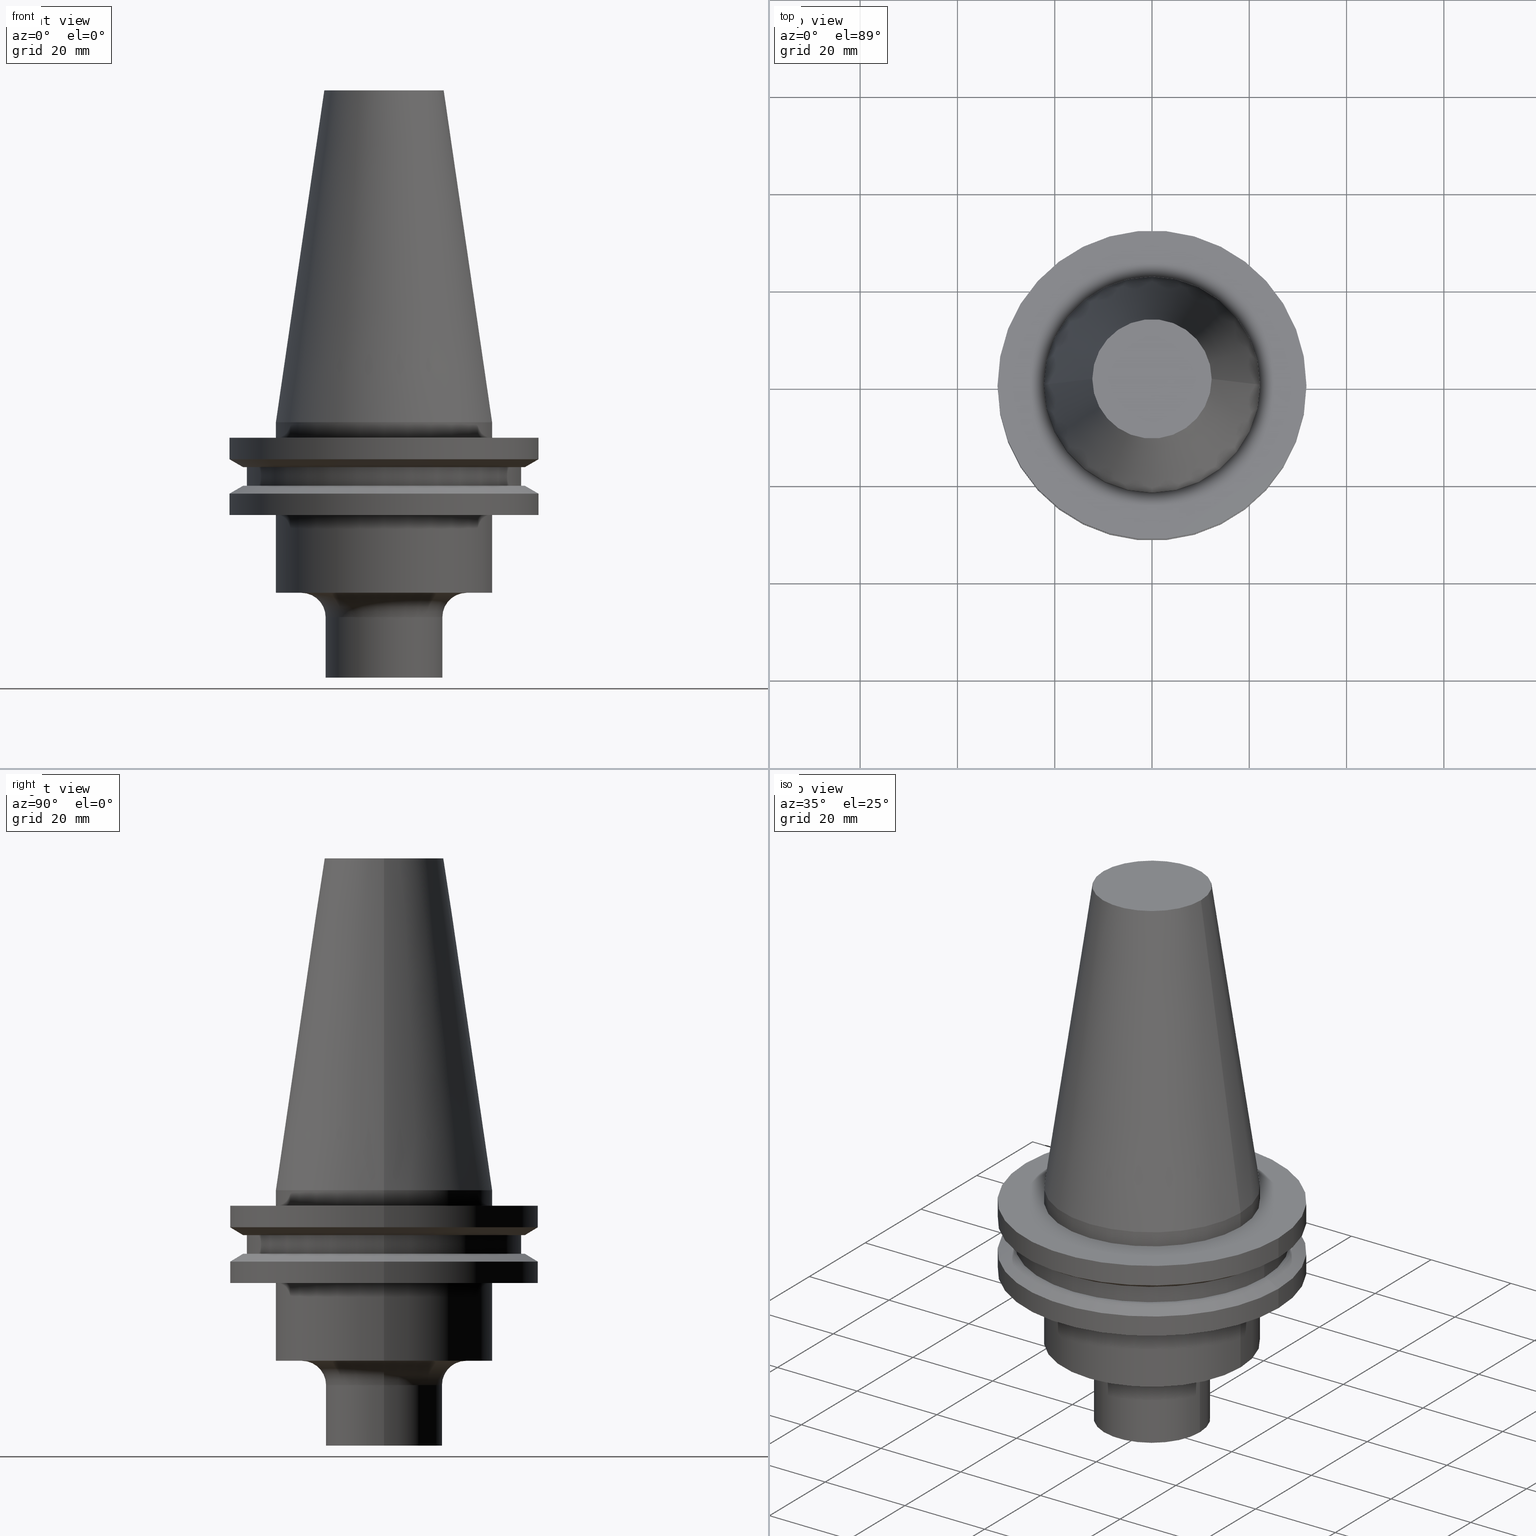
[diagram: canonical four-view strip — front | top / right | iso, engineering-drawing reading convention]
A machine part, canonical four-view strip (front | top / right | iso — engineering-drawing reading convention). The complete STEP part file that produces these views, byte-faithful:
ISO-10303-21;
HEADER;
FILE_DESCRIPTION (( 'STEP AP203' ),
    '1' );
FILE_NAME ('11_326_420.STEP',
    '2022-03-07T22:02:42',
    ( '' ),
    ( '' ),
    'SwSTEP 2.0',
    'SolidWorks 2021',
    '' );
FILE_SCHEMA (( 'CONFIG_CONTROL_DESIGN' ));
ENDSEC;

DATA;
#1 = ORIENTED_EDGE ( 'NONE', *, *, #81, .T. ) ;
#2 = FACE_OUTER_BOUND ( 'NONE', #200, .T. ) ;
#3 = VECTOR ( 'NONE', #83, 1000.000000000000000 ) ;
#4 = AXIS2_PLACEMENT_3D ( 'NONE', #354, #359, #231 ) ;
#5 = DIRECTION ( 'NONE',  ( 1.000000000000000000, 0.000000000000000000, 0.000000000000000000 ) ) ;
#6 = VECTOR ( 'NONE', #389, 1000.000000000000000 ) ;
#7 = ORIENTED_EDGE ( 'NONE', *, *, #33, .T. ) ;
#8 = DIRECTION ( 'NONE',  ( 1.000000000000000000, 0.000000000000000000, 0.000000000000000000 ) ) ;
#9 = DIRECTION ( 'NONE',  ( 0.000000000000000000, -0.000000000000000000, 1.000000000000000000 ) ) ;
#10 = EDGE_CURVE ( 'NONE', #278, #192, #355, .T. ) ;
#11 = ORIENTED_EDGE ( 'NONE', *, *, #613, .F. ) ;
#12 = DIRECTION ( 'NONE',  ( -0.000000000000000000, -0.000000000000000000, 1.000000000000000000 ) ) ;
#13 = EDGE_LOOP ( 'NONE', ( #592, #57, #125, #349 ) ) ;
#14 = DIRECTION ( 'NONE',  ( 1.000000000000000000, 0.000000000000000000, 0.000000000000000000 ) ) ;
#15 = AXIS2_PLACEMENT_3D ( 'NONE', #758, #270, #747 ) ;
#16 = ORIENTED_EDGE ( 'NONE', *, *, #22, .T. ) ;
#17 = VECTOR ( 'NONE', #572, 1000.000000000000000 ) ;
#18 = AXIS2_PLACEMENT_3D ( 'NONE', #234, #645, #475 ) ;
#19 = APPROVAL_ROLE ( '' ) ;
#20 = DIRECTION ( 'NONE',  ( 0.000000000000000000, -0.000000000000000000, 1.000000000000000000 ) ) ;
#21 = VERTEX_POINT ( 'NONE', #25 ) ;
#22 = EDGE_CURVE ( 'NONE', #607, #682, #676, .T. ) ;
#23 = APPROVAL_DATE_TIME ( #576, #549 ) ;
#24 = CARTESIAN_POINT ( 'NONE',  ( 0.000000000000000000, 0.000000000000000000, -3.174999999999997158 ) ) ;
#25 = CARTESIAN_POINT ( 'NONE',  ( -22.22500000000000142, 2.721777511104992849E-15, -19.04999999999999716 ) ) ;
#26 = CARTESIAN_POINT ( 'NONE',  ( 0.000000000000000000, 22.22500000000000142, -35.04999999999999716 ) ) ;
#27 = FACE_OUTER_BOUND ( 'NONE', #315, .T. ) ;
#28 = CIRCLE ( 'NONE', #15, 22.22500000000000142 ) ;
#29 = CIRCLE ( 'NONE', #66, 22.22500000000000142 ) ;
#30 = AXIS2_PLACEMENT_3D ( 'NONE', #705, #293, #772 ) ;
#31 = CARTESIAN_POINT ( 'NONE',  ( 0.000000000000000000, 0.000000000000000000, 68.25000000000000000 ) ) ;
#32 = DIRECTION ( 'NONE',  ( -0.000000000000000000, -0.000000000000000000, 1.000000000000000000 ) ) ;
#33 = EDGE_CURVE ( 'NONE', #762, #588, #662, .T. ) ;
#34 = CARTESIAN_POINT ( 'NONE',  ( 28.17999999999999972, 0.000000000000000000, 68.25000000000000000 ) ) ;
#35 = DIRECTION ( 'NONE',  ( -0.000000000000000000, -0.000000000000000000, 1.000000000000000000 ) ) ;
#36 = ORIENTED_EDGE ( 'NONE', *, *, #749, .F. ) ;
#37 = LINE ( 'NONE', #397, #308 ) ;
#38 = DIRECTION ( 'NONE',  ( -0.000000000000000000, -0.000000000000000000, 1.000000000000000000 ) ) ;
#39 = AXIS2_PLACEMENT_3D ( 'NONE', #694, #623, #521 ) ;
#40 = VECTOR ( 'NONE', #76, 999.9999999999998863 ) ;
#41 = LOCAL_TIME ( 16, 2, 42.00000000000000000, #123 ) ;
#42 = LINE ( 'NONE', #110, #357 ) ;
#43 = CARTESIAN_POINT ( 'NONE',  ( -12.27178102086201150, 0.000000000000000000, 68.25000000000000000 ) ) ;
#44 = VERTEX_POINT ( 'NONE', #745 ) ;
#45 = PRODUCT_RELATED_PRODUCT_CATEGORY ( 'detail', '', ( #97 ) ) ;
#46 = DIRECTION ( 'NONE',  ( -0.000000000000000000, -0.000000000000000000, 1.000000000000000000 ) ) ;
#47 = DIRECTION ( 'NONE',  ( 1.000000000000000000, 0.000000000000000000, 0.000000000000000000 ) ) ;
#48 = ORIENTED_EDGE ( 'NONE', *, *, #638, .F. ) ;
#49 = LINE ( 'NONE', #696, #742 ) ;
#50 = DIRECTION ( 'NONE',  ( -0.000000000000000000, -0.000000000000000000, 1.000000000000000000 ) ) ;
#51 = ORIENTED_EDGE ( 'NONE', *, *, #102, .F. ) ;
#52 = PRODUCT_DEFINITION_SHAPE ( 'NONE', 'NONE',  #109 ) ;
#53 = AXIS2_PLACEMENT_3D ( 'NONE', #327, #450, #685 ) ;
#54 = FACE_OUTER_BOUND ( 'NONE', #736, .T. ) ;
#55 = APPROVAL_PERSON_ORGANIZATION ( #713, #730, #718 ) ;
#56 = LINE ( 'NONE', #342, #240 ) ;
#57 = ORIENTED_EDGE ( 'NONE', *, *, #249, .T. ) ;
#58 = COORDINATED_UNIVERSAL_TIME_OFFSET ( 6, 0, .BEHIND. ) ;
#59 = DIRECTION ( 'NONE',  ( 0.000000000000000000, 0.000000000000000000, -1.000000000000000000 ) ) ;
#60 = EDGE_LOOP ( 'NONE', ( #48, #288, #675, #426 ) ) ;
#61 = DIRECTION ( 'NONE',  ( -0.000000000000000000, -0.000000000000000000, 1.000000000000000000 ) ) ;
#62 = CARTESIAN_POINT ( 'NONE',  ( -22.22500000000000142, 0.000000000000000000, 0.000000000000000000 ) ) ;
#63 = ORIENTED_EDGE ( 'NONE', *, *, #557, .T. ) ;
#64 = ADVANCED_FACE ( 'NONE', ( #266 ), #295, .T. ) ;
#65 = DIRECTION ( 'NONE',  ( -0.000000000000000000, -0.000000000000000000, 1.000000000000000000 ) ) ;
#66 = AXIS2_PLACEMENT_3D ( 'NONE', #440, #98, #619 ) ;
#67 = DIRECTION ( 'NONE',  ( -0.000000000000000000, -0.000000000000000000, 1.000000000000000000 ) ) ;
#68 = ORIENTED_EDGE ( 'NONE', *, *, #286, .T. ) ;
#69 = CARTESIAN_POINT ( 'NONE',  ( 0.000000000000000000, 0.000000000000000000, 68.25000000000000000 ) ) ;
#70 = FACE_OUTER_BOUND ( 'NONE', #60, .T. ) ;
#71 = EDGE_LOOP ( 'NONE', ( #658, #565, #733, #523 ) ) ;
#72 = DIRECTION ( 'NONE',  ( -0.000000000000000000, -0.000000000000000000, 1.000000000000000000 ) ) ;
#73 = FACE_OUTER_BOUND ( 'NONE', #13, .T. ) ;
#74 = VERTEX_POINT ( 'NONE', #99 ) ;
#75 = PERSON_AND_ORGANIZATION_ROLE ( 'design_supplier' ) ;
#76 = DIRECTION ( 'NONE',  ( -0.1443082272672999711, 0.000000000000000000, -0.9895327864921755756 ) ) ;
#77 = VECTOR ( 'NONE', #154, 1000.000000000000000 ) ;
#78 = VERTEX_POINT ( 'NONE', #568 ) ;
#79 = AXIS2_PLACEMENT_3D ( 'NONE', #202, #579, #205 ) ;
#80 = CIRCLE ( 'NONE', #30, 17.00000000000000000 ) ;
#81 = EDGE_CURVE ( 'NONE', #578, #296, #725, .T. ) ;
#82 = DIRECTION ( 'NONE',  ( 1.000000000000000000, 0.000000000000000000, 0.000000000000000000 ) ) ;
#83 = DIRECTION ( 'NONE',  ( -0.000000000000000000, -0.000000000000000000, 1.000000000000000000 ) ) ;
#84 = CARTESIAN_POINT ( 'NONE',  ( 0.000000000000000000, 0.000000000000000000, -14.65472339340266572 ) ) ;
#85 = CYLINDRICAL_SURFACE ( 'NONE', #239, 12.00000000000000000 ) ;
#86 = EDGE_LOOP ( 'NONE', ( #179, #551 ) ) ;
#87 = SHAPE_DEFINITION_REPRESENTATION ( #52, #442 ) ;
#88 = ADVANCED_FACE ( 'NONE', ( #27 ), #85, .T. ) ;
#89 = CARTESIAN_POINT ( 'NONE',  ( -28.97919780457007732, 3.548928183322474856E-15, -9.205000000000005400 ) ) ;
#90 = CARTESIAN_POINT ( 'NONE',  ( 0.000000000000000000, 0.000000000000000000, -19.04999999999999716 ) ) ;
#91 = CIRCLE ( 'NONE', #640, 28.97919780457007732 ) ;
#92 = CIRCLE ( 'NONE', #158, 28.17999999999999972 ) ;
#93 = PERSON_AND_ORGANIZATION ( #135, #584 ) ;
#94 = DIRECTION ( 'NONE',  ( 1.000000000000000000, 0.000000000000000000, 0.000000000000000000 ) ) ;
#95 = CC_DESIGN_PERSON_AND_ORGANIZATION_ASSIGNMENT ( #492, #256, ( #97 ) ) ;
#96 = ORIENTED_EDGE ( 'NONE', *, *, #314, .F. ) ;
#97 = PRODUCT ( '11_326_420', '11_326_420', '', ( #376 ) ) ;
#98 = DIRECTION ( 'NONE',  ( -0.000000000000000000, -0.000000000000000000, 1.000000000000000000 ) ) ;
#99 = CARTESIAN_POINT ( 'NONE',  ( -22.22500000000000142, 2.721777511104992849E-15, -35.04999999999999716 ) ) ;
#100 = DIRECTION ( 'NONE',  ( 0.000000000000000000, -0.000000000000000000, 1.000000000000000000 ) ) ;
#101 = DIRECTION ( 'NONE',  ( 1.000000000000000000, 0.000000000000000000, 0.000000000000000000 ) ) ;
#102 = EDGE_CURVE ( 'NONE', #412, #682, #686, .T. ) ;
#103 = CIRCLE ( 'NONE', #457, 12.00000000000000000 ) ;
#104 = AXIS2_PLACEMENT_3D ( 'NONE', #374, #9, #184 ) ;
#105 = AXIS2_PLACEMENT_3D ( 'NONE', #648, #280, #399 ) ;
#106 = DIRECTION ( 'NONE',  ( 1.000000000000000000, 0.000000000000000000, 0.000000000000000000 ) ) ;
#107 = DIRECTION ( 'NONE',  ( 1.000000000000000000, 0.000000000000000000, 0.000000000000000000 ) ) ;
#108 = ORIENTED_EDGE ( 'NONE', *, *, #373, .T. ) ;
#109 = PRODUCT_DEFINITION ( 'UNKNOWN', '', #382, #712 ) ;
#110 = CARTESIAN_POINT ( 'NONE',  ( 22.22500000000000142, 2.721777511104992849E-15, 0.000000000000000000 ) ) ;
#111 = CARTESIAN_POINT ( 'NONE',  ( 0.000000000000000000, 0.000000000000000000, -52.50000000000000000 ) ) ;
#112 = EDGE_LOOP ( 'NONE', ( #538, #96 ) ) ;
#113 = FACE_OUTER_BOUND ( 'NONE', #86, .T. ) ;
#114 = ADVANCED_FACE ( 'NONE', ( #504 ), #739, .T. ) ;
#115 = CARTESIAN_POINT ( 'NONE',  ( -28.17999999999999972, 3.451054679997241634E-15, -13.05499999999999794 ) ) ;
#116 = ORIENTED_EDGE ( 'NONE', *, *, #590, .F. ) ;
#117 = AXIS2_PLACEMENT_3D ( 'NONE', #159, #146, #567 ) ;
#118 = CARTESIAN_POINT ( 'NONE',  ( 0.000000000000000000, 0.000000000000000000, -9.205000000000005400 ) ) ;
#119 = AXIS2_PLACEMENT_3D ( 'NONE', #413, #407, #220 ) ;
#120 = DIRECTION ( 'NONE',  ( -0.000000000000000000, -0.000000000000000000, 1.000000000000000000 ) ) ;
#121 = EDGE_CURVE ( 'NONE', #21, #157, #255, .T. ) ;
#122 = EDGE_LOOP ( 'NONE', ( #36, #203, #319, #477 ) ) ;
#123 = COORDINATED_UNIVERSAL_TIME_OFFSET ( 6, 0, .BEHIND. ) ;
#124 = CARTESIAN_POINT ( 'NONE',  ( 0.000000000000000000, 0.000000000000000000, -9.205000000000005400 ) ) ;
#125 = ORIENTED_EDGE ( 'NONE', *, *, #455, .F. ) ;
#126 = EDGE_CURVE ( 'NONE', #192, #278, #28, .T. ) ;
#127 = COORDINATED_UNIVERSAL_TIME_OFFSET ( 6, 0, .BEHIND. ) ;
#128 = LINE ( 'NONE', #62, #40 ) ;
#129 = EDGE_LOOP ( 'NONE', ( #717, #68, #683, #238 ) ) ;
#130 = DIRECTION ( 'NONE',  ( 1.000000000000000000, 0.000000000000000000, 0.000000000000000000 ) ) ;
#131 = CIRCLE ( 'NONE', #180, 28.97919780457008088 ) ;
#132 = AXIS2_PLACEMENT_3D ( 'NONE', #583, #59, #302 ) ;
#133 = DIRECTION ( 'NONE',  ( -0.000000000000000000, -0.000000000000000000, 1.000000000000000000 ) ) ;
#134 = ORIENTED_EDGE ( 'NONE', *, *, #573, .F. ) ;
#135 = PERSON ( 'UNSPECIFIED', 'UNSPECIFIED', 'UNSPECIFIED', ('UNSPECIFIED'), ('UNSPECIFIED'), ('UNSPECIFIED') ) ;
#136 = DATE_AND_TIME ( #668, #702 ) ;
#137 = CARTESIAN_POINT ( 'NONE',  ( 0.000000000000000000, 0.000000000000000000, -13.05499999999999794 ) ) ;
#138 = ORIENTED_EDGE ( 'NONE', *, *, #474, .T. ) ;
#139 = DIRECTION ( 'NONE',  ( -0.000000000000000000, -0.000000000000000000, 1.000000000000000000 ) ) ;
#140 = EDGE_CURVE ( 'NONE', #296, #192, #691, .T. ) ;
#141 = ORIENTED_EDGE ( 'NONE', *, *, #388, .F. ) ;
#142 = FACE_OUTER_BOUND ( 'NONE', #272, .T. ) ;
#143 = CIRCLE ( 'NONE', #393, 12.27178102086201150 ) ;
#144 = EDGE_CURVE ( 'NONE', #741, #607, #752, .T. ) ;
#145 = ORIENTED_EDGE ( 'NONE', *, *, #369, .F. ) ;
#146 = DIRECTION ( 'NONE',  ( -0.000000000000000000, -0.000000000000000000, 1.000000000000000000 ) ) ;
#147 = ORIENTED_EDGE ( 'NONE', *, *, #749, .T. ) ;
#148 = EDGE_CURVE ( 'NONE', #303, #515, #131, .T. ) ;
#149 = LINE ( 'NONE', #276, #17 ) ;
#150 = EDGE_LOOP ( 'NONE', ( #720, #766, #704, #465 ) ) ;
#151 = CC_DESIGN_PERSON_AND_ORGANIZATION_ASSIGNMENT ( #214, #75, ( #382 ) ) ;
#152 = CARTESIAN_POINT ( 'NONE',  ( -17.00000000000000000, 2.081899558550500280E-15, -35.04999999999999716 ) ) ;
#153 = AXIS2_PLACEMENT_3D ( 'NONE', #160, #216, #339 ) ;
#154 = DIRECTION ( 'NONE',  ( -0.000000000000000000, -0.000000000000000000, 1.000000000000000000 ) ) ;
#155 = VECTOR ( 'NONE', #120, 1000.000000000000000 ) ;
#156 = AXIS2_PLACEMENT_3D ( 'NONE', #759, #461, #636 ) ;
#157 = VERTEX_POINT ( 'NONE', #591 ) ;
#158 = AXIS2_PLACEMENT_3D ( 'NONE', #466, #358, #230 ) ;
#159 = CARTESIAN_POINT ( 'NONE',  ( 0.000000000000000000, 0.000000000000000000, 68.25000000000000000 ) ) ;
#160 = CARTESIAN_POINT ( 'NONE',  ( 0.000000000000000000, 0.000000000000000000, 68.25000000000000000 ) ) ;
#161 = UNCERTAINTY_MEASURE_WITH_UNIT (LENGTH_MEASURE( 1.000000000000000082E-05 ), #605, 'distance_accuracy_value', 'NONE');
#162 = CARTESIAN_POINT ( 'NONE',  ( -31.75000000000000000, 3.888253587292846476E-15, -7.605276606597335842 ) ) ;
#163 = CARTESIAN_POINT ( 'NONE',  ( 0.000000000000000000, 12.27178102086201150, 68.25000000000000000 ) ) ;
#164 = ADVANCED_FACE ( 'NONE', ( #400 ), #291, .T. ) ;
#165 = FACE_OUTER_BOUND ( 'NONE', #218, .T. ) ;
#166 = PLANE ( 'NONE',  #753 ) ;
#167 = VERTEX_POINT ( 'NONE', #777 ) ;
#168 = CIRCLE ( 'NONE', #716, 12.00000000000000000 ) ;
#169 = FACE_OUTER_BOUND ( 'NONE', #150, .T. ) ;
#170 = DIRECTION ( 'NONE',  ( 1.000000000000000000, 0.000000000000000000, 0.000000000000000000 ) ) ;
#171 = ORIENTED_EDGE ( 'NONE', *, *, #499, .F. ) ;
#172 = EDGE_CURVE ( 'NONE', #578, #278, #641, .T. ) ;
#173 = LINE ( 'NONE', #299, #368 ) ;
#174 = CARTESIAN_POINT ( 'NONE',  ( 0.000000000000000000, 0.000000000000000000, -40.04999999999999716 ) ) ;
#175 = ORIENTED_EDGE ( 'NONE', *, *, #346, .T. ) ;
#176 = ADVANCED_FACE ( 'NONE', ( #649 ), #379, .F. ) ;
#177 = DIRECTION ( 'NONE',  ( 1.000000000000000000, 0.000000000000000000, 0.000000000000000000 ) ) ;
#178 = DIRECTION ( 'NONE',  ( -0.000000000000000000, -0.000000000000000000, 1.000000000000000000 ) ) ;
#179 = ORIENTED_EDGE ( 'NONE', *, *, #514, .T. ) ;
#180 = AXIS2_PLACEMENT_3D ( 'NONE', #448, #348, #480 ) ;
#181 = AXIS2_PLACEMENT_3D ( 'NONE', #31, #678, #501 ) ;
#182 = DATE_AND_TIME ( #721, #285 ) ;
#183 = AXIS2_PLACEMENT_3D ( 'NONE', #539, #65, #8 ) ;
#184 = DIRECTION ( 'NONE',  ( 1.000000000000000000, 0.000000000000000000, 0.000000000000000000 ) ) ;
#185 = ORIENTED_EDGE ( 'NONE', *, *, #10, .F. ) ;
#186 = LINE ( 'NONE', #542, #271 ) ;
#187 = PLANE ( 'NONE',  #330 ) ;
#188 = EDGE_CURVE ( 'NONE', #409, #211, #417, .T. ) ;
#189 = ORIENTED_EDGE ( 'NONE', *, *, #573, .T. ) ;
#190 = DATE_TIME_ROLE ( 'creation_date' ) ;
#191 = DIRECTION ( 'NONE',  ( 0.000000000000000000, 0.000000000000000000, -1.000000000000000000 ) ) ;
#192 = VERTEX_POINT ( 'NONE', #529 ) ;
#193 = APPLICATION_PROTOCOL_DEFINITION ( 'international standard', 'config_control_design', 1994, #569 ) ;
#194 = AXIS2_PLACEMENT_3D ( 'NONE', #726, #435, #669 ) ;
#195 = DIRECTION ( 'NONE',  ( -0.000000000000000000, -0.000000000000000000, 1.000000000000000000 ) ) ;
#196 = ORIENTED_EDGE ( 'NONE', *, *, #314, .T. ) ;
#197 = EDGE_CURVE ( 'NONE', #292, #598, #143, .T. ) ;
#198 = DIRECTION ( 'NONE',  ( 0.000000000000000000, 0.000000000000000000, 1.000000000000000000 ) ) ;
#199 = DIRECTION ( 'NONE',  ( -0.000000000000000000, -0.000000000000000000, 1.000000000000000000 ) ) ;
#200 = EDGE_LOOP ( 'NONE', ( #530, #673, #473, #664 ) ) ;
#201 = CALENDAR_DATE ( 2022, 7, 3 ) ;
#202 = CARTESIAN_POINT ( 'NONE',  ( 0.000000000000000000, 0.000000000000000000, -52.50000000000000000 ) ) ;
#203 = ORIENTED_EDGE ( 'NONE', *, *, #33, .F. ) ;
#204 = CIRCLE ( 'NONE', #558, 22.22500000000000142 ) ;
#205 = DIRECTION ( 'NONE',  ( 1.000000000000000000, 0.000000000000000000, 0.000000000000000000 ) ) ;
#206 = ORIENTED_EDGE ( 'NONE', *, *, #126, .T. ) ;
#207 = AXIS2_PLACEMENT_3D ( 'NONE', #486, #12, #437 ) ;
#208 = EDGE_CURVE ( 'NONE', #412, #741, #617, .T. ) ;
#209 = AXIS2_PLACEMENT_3D ( 'NONE', #69, #72, #130 ) ;
#210 = DIRECTION ( 'NONE',  ( 1.000000000000000000, 0.000000000000000000, 0.000000000000000000 ) ) ;
#211 = VERTEX_POINT ( 'NONE', #115 ) ;
#212 = DIRECTION ( 'NONE',  ( -0.000000000000000000, -0.000000000000000000, 1.000000000000000000 ) ) ;
#213 = DIRECTION ( 'NONE',  ( -0.000000000000000000, -0.000000000000000000, 1.000000000000000000 ) ) ;
#214 = PERSON_AND_ORGANIZATION ( #135, #584 ) ;
#215 = FACE_OUTER_BOUND ( 'NONE', #356, .T. ) ;
#216 = DIRECTION ( 'NONE',  ( -0.000000000000000000, -0.000000000000000000, 1.000000000000000000 ) ) ;
#217 = AXIS2_PLACEMENT_3D ( 'NONE', #394, #525, #289 ) ;
#218 = EDGE_LOOP ( 'NONE', ( #585, #361, #620, #141 ) ) ;
#219 = EDGE_CURVE ( 'NONE', #306, #260, #411, .T. ) ;
#220 = DIRECTION ( 'NONE',  ( -1.000000000000000000, 0.000000000000000000, 0.000000000000000000 ) ) ;
#221 = DIRECTION ( 'NONE',  ( -0.000000000000000000, -0.000000000000000000, 1.000000000000000000 ) ) ;
#222 = FACE_BOUND ( 'NONE', #728, .T. ) ;
#223 = CARTESIAN_POINT ( 'NONE',  ( 0.000000000000000000, 0.000000000000000000, -3.174999999999997158 ) ) ;
#224 = ORIENTED_EDGE ( 'NONE', *, *, #264, .T. ) ;
#225 = CYLINDRICAL_SURFACE ( 'NONE', #469, 12.00000000000000000 ) ;
#226 = DIRECTION ( 'NONE',  ( -0.000000000000000000, -0.000000000000000000, 1.000000000000000000 ) ) ;
#227 = ORIENTED_EDGE ( 'NONE', *, *, #392, .F. ) ;
#228 = VECTOR ( 'NONE', #178, 1000.000000000000000 ) ;
#229 = AXIS2_PLACEMENT_3D ( 'NONE', #258, #377, #561 ) ;
#230 = DIRECTION ( 'NONE',  ( 1.000000000000000000, 0.000000000000000000, 0.000000000000000000 ) ) ;
#231 = DIRECTION ( 'NONE',  ( 1.000000000000000000, 0.000000000000000000, 0.000000000000000000 ) ) ;
#232 = ORIENTED_EDGE ( 'NONE', *, *, #499, .T. ) ;
#233 = ADVANCED_FACE ( 'NONE', ( #532 ), #283, .F. ) ;
#234 = CARTESIAN_POINT ( 'NONE',  ( 0.000000000000000000, 0.000000000000000000, -14.65472339340266572 ) ) ;
#235 = DIRECTION ( 'NONE',  ( -0.000000000000000000, -0.000000000000000000, 1.000000000000000000 ) ) ;
#236 = EDGE_LOOP ( 'NONE', ( #390, #650 ) ) ;
#237 = CARTESIAN_POINT ( 'NONE',  ( 0.000000000000000000, 0.000000000000000000, 68.25000000000000000 ) ) ;
#238 = ORIENTED_EDGE ( 'NONE', *, *, #121, .F. ) ;
#239 = AXIS2_PLACEMENT_3D ( 'NONE', #627, #274, #517 ) ;
#240 = VECTOR ( 'NONE', #764, 1000.000000000000000 ) ;
#241 = CIRCLE ( 'NONE', #79, 12.00000000000000000 ) ;
#242 = CYLINDRICAL_SURFACE ( 'NONE', #419, 22.22500000000000142 ) ;
#243 = APPROVAL_PERSON_ORGANIZATION ( #334, #549, #19 ) ;
#244 = ADVANCED_FACE ( 'NONE', ( #408 ), #166, .F. ) ;
#245 = CARTESIAN_POINT ( 'NONE',  ( 28.17999999999999972, 0.000000000000000000, -13.05499999999999794 ) ) ;
#246 = EDGE_LOOP ( 'NONE', ( #544, #699, #108, #206 ) ) ;
#247 = CARTESIAN_POINT ( 'NONE',  ( 0.000000000000000000, 0.000000000000000000, 0.000000000000000000 ) ) ;
#248 = PLANE ( 'NONE',  #571 ) ;
#249 = EDGE_CURVE ( 'NONE', #211, #167, #56, .T. ) ;
#250 = ORIENTED_EDGE ( 'NONE', *, *, #689, .F. ) ;
#251 = CYLINDRICAL_SURFACE ( 'NONE', #209, 31.75000000000000000 ) ;
#252 = CARTESIAN_POINT ( 'NONE',  ( 0.000000000000000000, 28.97919780457007732, -9.204999999999996518 ) ) ;
#253 = ORIENTED_EDGE ( 'NONE', *, *, #121, .T. ) ;
#254 = EDGE_CURVE ( 'NONE', #296, #578, #445, .T. ) ;
#255 = CIRCLE ( 'NONE', #366, 22.22500000000000142 ) ;
#256 = PERSON_AND_ORGANIZATION_ROLE ( 'design_owner' ) ;
#257 = AXIS2_PLACEMENT_3D ( 'NONE', #463, #100, #177 ) ;
#258 = CARTESIAN_POINT ( 'NONE',  ( 0.000000000000000000, 0.000000000000000000, -3.174999999999997158 ) ) ;
#259 = CC_DESIGN_APPROVAL ( #549, ( #559 ) ) ;
#260 = VERTEX_POINT ( 'NONE', #403 ) ;
#261 = PERSON_AND_ORGANIZATION_ROLE ( 'creator' ) ;
#262 = CARTESIAN_POINT ( 'NONE',  ( 12.00000000000000000, 0.000000000000000000, -52.50000000000000000 ) ) ;
#263 = ORIENTED_EDGE ( 'NONE', *, *, #401, .F. ) ;
#264 = EDGE_CURVE ( 'NONE', #306, #301, #103, .T. ) ;
#265 = CARTESIAN_POINT ( 'NONE',  ( -31.75000000000000000, 3.888253587292846476E-15, -3.174999999999997158 ) ) ;
#266 = FACE_OUTER_BOUND ( 'NONE', #246, .T. ) ;
#267 = EDGE_LOOP ( 'NONE', ( #443, #363, #16, #134 ) ) ;
#268 = DIRECTION ( 'NONE',  ( -0.000000000000000000, -0.000000000000000000, 1.000000000000000000 ) ) ;
#269 = AXIS2_PLACEMENT_3D ( 'NONE', #26, #743, #210 ) ;
#270 = DIRECTION ( 'NONE',  ( -0.000000000000000000, -0.000000000000000000, 1.000000000000000000 ) ) ;
#271 = VECTOR ( 'NONE', #61, 1000.000000000000000 ) ;
#272 = EDGE_LOOP ( 'NONE', ( #610, #562, #372, #654 ) ) ;
#273 = CARTESIAN_POINT ( 'NONE',  ( -12.00000000000000000, 1.469576158976823947E-15, -40.04999999999999716 ) ) ;
#274 = DIRECTION ( 'NONE',  ( -0.000000000000000000, -0.000000000000000000, 1.000000000000000000 ) ) ;
#275 = DATE_TIME_ROLE ( 'classification_date' ) ;
#276 = CARTESIAN_POINT ( 'NONE',  ( -22.22500000000000142, 2.721777511104992849E-15, 68.25000000000000000 ) ) ;
#277 = CARTESIAN_POINT ( 'NONE',  ( 0.000000000000000000, 0.000000000000000000, -3.174999999999997158 ) ) ;
#278 = VERTEX_POINT ( 'NONE', #294 ) ;
#279 = EDGE_CURVE ( 'NONE', #375, #707, #320, .T. ) ;
#280 = DIRECTION ( 'NONE',  ( 0.000000000000000000, 0.000000000000000000, -1.000000000000000000 ) ) ;
#281 = AXIS2_PLACEMENT_3D ( 'NONE', #508, #32, #396 ) ;
#282 = CARTESIAN_POINT ( 'NONE',  ( 0.000000000000000000, 0.000000000000000000, 0.000000000000000000 ) ) ;
#283 = TOROIDAL_SURFACE ( 'NONE', #4, 17.00000000000000000, 4.999999999999999112 ) ;
#284 = CIRCLE ( 'NONE', #755, 31.75000000000000000 ) ;
#285 = LOCAL_TIME ( 16, 2, 42.00000000000000000, #58 ) ;
#286 = EDGE_CURVE ( 'NONE', #74, #78, #204, .T. ) ;
#287 = FACE_OUTER_BOUND ( 'NONE', #580, .T. ) ;
#288 = ORIENTED_EDGE ( 'NONE', *, *, #422, .T. ) ;
#289 = DIRECTION ( 'NONE',  ( 1.000000000000000000, 0.000000000000000000, 0.000000000000000000 ) ) ;
#290 = ADVANCED_FACE ( 'NONE', ( #476 ), #700, .T. ) ;
#291 = CYLINDRICAL_SURFACE ( 'NONE', #570, 22.22500000000000142 ) ;
#292 = VERTEX_POINT ( 'NONE', #43 ) ;
#293 = DIRECTION ( 'NONE',  ( -0.000000000000000000, -0.000000000000000000, 1.000000000000000000 ) ) ;
#294 = CARTESIAN_POINT ( 'NONE',  ( 22.22500000000000142, 2.721777511104992849E-15, 0.000000000000000000 ) ) ;
#295 = CONICAL_SURFACE ( 'NONE', #481, 22.22500000000000142, 0.1448138465474119174 ) ;
#296 = VERTEX_POINT ( 'NONE', #526 ) ;
#297 = CIRCLE ( 'NONE', #404, 28.97919780457008088 ) ;
#298 = CC_DESIGN_APPROVAL ( #730, ( #109 ) ) ;
#299 = CARTESIAN_POINT ( 'NONE',  ( 31.75000000000000000, 0.000000000000000000, 68.25000000000000000 ) ) ;
#300 = DIRECTION ( 'NONE',  ( 1.000000000000000000, 0.000000000000000000, 0.000000000000000000 ) ) ;
#301 = VERTEX_POINT ( 'NONE', #497 ) ;
#302 = DIRECTION ( 'NONE',  ( -1.000000000000000000, 0.000000000000000000, 0.000000000000000000 ) ) ;
#303 = VERTEX_POINT ( 'NONE', #612 ) ;
#304 = EDGE_CURVE ( 'NONE', #515, #607, #555, .T. ) ;
#305 = DIRECTION ( 'NONE',  ( -0.000000000000000000, -0.000000000000000000, 1.000000000000000000 ) ) ;
#306 = VERTEX_POINT ( 'NONE', #262 ) ;
#307 = AXIS2_PLACEMENT_3D ( 'NONE', #282, #221, #633 ) ;
#308 = VECTOR ( 'NONE', #564, 1000.000000000000000 ) ;
#309 = CIRCLE ( 'NONE', #380, 31.75000000000000000 ) ;
#310 = CARTESIAN_POINT ( 'NONE',  ( 0.000000000000000000, 0.000000000000000000, -40.04999999999999716 ) ) ;
#311 = ORIENTED_EDGE ( 'NONE', *, *, #724, .F. ) ;
#312 = CARTESIAN_POINT ( 'NONE',  ( 0.000000000000000000, 0.000000000000000000, 68.25000000000000000 ) ) ;
#313 = DIRECTION ( 'NONE',  ( 1.000000000000000000, 0.000000000000000000, 0.000000000000000000 ) ) ;
#314 = EDGE_CURVE ( 'NONE', #211, #409, #433, .T. ) ;
#315 = EDGE_LOOP ( 'NONE', ( #224, #333, #263, #323 ) ) ;
#316 = DIRECTION ( 'NONE',  ( 1.224646799147353207E-16, 1.000000000000000000, 0.000000000000000000 ) ) ;
#317 = CYLINDRICAL_SURFACE ( 'NONE', #367, 28.17999999999999972 ) ;
#318 = CC_DESIGN_PERSON_AND_ORGANIZATION_ASSIGNMENT ( #479, #496, ( #109 ) ) ;
#319 = ORIENTED_EDGE ( 'NONE', *, *, #613, .T. ) ;
#320 = CIRCLE ( 'NONE', #545, 28.97919780457007732 ) ;
#321 = FACE_OUTER_BOUND ( 'NONE', #398, .T. ) ;
#322 = CONICAL_SURFACE ( 'NONE', #183, 28.97919780457007732, 1.047197551196598297 ) ;
#323 = ORIENTED_EDGE ( 'NONE', *, *, #219, .F. ) ;
#324 = CARTESIAN_POINT ( 'NONE',  ( 31.75000000000000000, 0.000000000000000000, -3.174999999999997158 ) ) ;
#325 = EDGE_LOOP ( 'NONE', ( #405, #670 ) ) ;
#326 = ADVANCED_FACE ( 'NONE', ( #73 ), #317, .T. ) ;
#327 = CARTESIAN_POINT ( 'NONE',  ( 0.000000000000000000, 0.000000000000000000, 68.25000000000000000 ) ) ;
#328 = CARTESIAN_POINT ( 'NONE',  ( -31.75000000000000000, 3.888253587292846476E-15, 68.25000000000000000 ) ) ;
#329 = DIRECTION ( 'NONE',  ( -0.8660254037844389297, 1.060575238724907285E-16, 0.4999999999999995004 ) ) ;
#330 = AXIS2_PLACEMENT_3D ( 'NONE', #252, #20, #656 ) ;
#331 = ORIENTED_EDGE ( 'NONE', *, *, #148, .T. ) ;
#332 = LOCAL_TIME ( 16, 2, 42.00000000000000000, #444 ) ;
#333 = ORIENTED_EDGE ( 'NONE', *, *, #452, .T. ) ;
#334 = PERSON_AND_ORGANIZATION ( #135, #584 ) ;
#335 = CYLINDRICAL_SURFACE ( 'NONE', #665, 22.22500000000000142 ) ;
#336 = DIRECTION ( 'NONE',  ( 0.000000000000000000, 0.000000000000000000, -1.000000000000000000 ) ) ;
#337 = EDGE_CURVE ( 'NONE', #451, #438, #628, .T. ) ;
#338 = DIRECTION ( 'NONE',  ( -0.000000000000000000, -0.000000000000000000, 1.000000000000000000 ) ) ;
#339 = DIRECTION ( 'NONE',  ( 1.000000000000000000, 0.000000000000000000, 0.000000000000000000 ) ) ;
#340 = ORIENTED_EDGE ( 'NONE', *, *, #144, .T. ) ;
#341 = DIRECTION ( 'NONE',  ( 0.000000000000000000, 0.000000000000000000, -1.000000000000000000 ) ) ;
#342 = CARTESIAN_POINT ( 'NONE',  ( -28.17999999999999972, 3.451054679997241634E-15, 68.25000000000000000 ) ) ;
#343 = AXIS2_PLACEMENT_3D ( 'NONE', #646, #595, #761 ) ;
#344 = EDGE_LOOP ( 'NONE', ( #748, #631, #189, #695 ) ) ;
#345 = CC_DESIGN_APPROVAL ( #680, ( #382 ) ) ;
#346 = EDGE_CURVE ( 'NONE', #515, #303, #297, .T. ) ;
#347 = DIRECTION ( 'NONE',  ( 0.8660254037844389297, 0.000000000000000000, 0.4999999999999995004 ) ) ;
#348 = DIRECTION ( 'NONE',  ( -0.000000000000000000, -0.000000000000000000, 1.000000000000000000 ) ) ;
#349 = ORIENTED_EDGE ( 'NONE', *, *, #441, .F. ) ;
#350 = CARTESIAN_POINT ( 'NONE',  ( -31.75000000000000000, 3.888253587292846476E-15, 68.25000000000000000 ) ) ;
#351 = DIRECTION ( 'NONE',  ( -0.000000000000000000, -0.000000000000000000, 1.000000000000000000 ) ) ;
#352 = ORIENTED_EDGE ( 'NONE', *, *, #369, .T. ) ;
#353 = CYLINDRICAL_SURFACE ( 'NONE', #156, 31.75000000000000000 ) ;
#354 = CARTESIAN_POINT ( 'NONE',  ( 0.000000000000000000, 0.000000000000000000, -40.04999999999999716 ) ) ;
#355 = CIRCLE ( 'NONE', #307, 22.22500000000000142 ) ;
#356 = EDGE_LOOP ( 'NONE', ( #1, #601, #185, #556 ) ) ;
#357 = VECTOR ( 'NONE', #402, 999.9999999999998863 ) ;
#358 = DIRECTION ( 'NONE',  ( -0.000000000000000000, -0.000000000000000000, 1.000000000000000000 ) ) ;
#359 = DIRECTION ( 'NONE',  ( -0.000000000000000000, -0.000000000000000000, 1.000000000000000000 ) ) ;
#360 = ADVANCED_FACE ( 'NONE', ( #615 ), #543, .F. ) ;
#361 = ORIENTED_EDGE ( 'NONE', *, *, #524, .T. ) ;
#362 = CARTESIAN_POINT ( 'NONE',  ( 28.97919780457007732, 0.000000000000000000, -9.205000000000005400 ) ) ;
#363 = ORIENTED_EDGE ( 'NONE', *, *, #304, .T. ) ;
#364 = FACE_BOUND ( 'NONE', #491, .T. ) ;
#365 = VERTEX_POINT ( 'NONE', #606 ) ;
#366 = AXIS2_PLACEMENT_3D ( 'NONE', #90, #35, #460 ) ;
#367 = AXIS2_PLACEMENT_3D ( 'NONE', #719, #732, #14 ) ;
#368 = VECTOR ( 'NONE', #589, 1000.000000000000000 ) ;
#369 = EDGE_CURVE ( 'NONE', #78, #74, #520, .T. ) ;
#370 = FACE_OUTER_BOUND ( 'NONE', #553, .T. ) ;
#371 = CARTESIAN_POINT ( 'NONE',  ( -31.74999999999999289, 3.888253587292845687E-15, -19.04999999999999716 ) ) ;
#372 = ORIENTED_EDGE ( 'NONE', *, *, #22, .F. ) ;
#373 = EDGE_CURVE ( 'NONE', #292, #192, #128, .T. ) ;
#374 = CARTESIAN_POINT ( 'NONE',  ( 0.000000000000000000, 12.00000000000000000, -52.50000000000000000 ) ) ;
#375 = VERTEX_POINT ( 'NONE', #362 ) ;
#376 = MECHANICAL_CONTEXT ( 'NONE', #449, 'mechanical' ) ;
#377 = DIRECTION ( 'NONE',  ( -0.000000000000000000, -0.000000000000000000, 1.000000000000000000 ) ) ;
#378 = ORIENTED_EDGE ( 'NONE', *, *, #208, .F. ) ;
#379 = TOROIDAL_SURFACE ( 'NONE', #431, 17.00000000000000000, 4.999999999999999112 ) ;
#380 = AXIS2_PLACEMENT_3D ( 'NONE', #663, #133, #609 ) ;
#381 = CARTESIAN_POINT ( 'NONE',  ( 0.000000000000000000, 0.000000000000000000, -9.204999999999991189 ) ) ;
#382 = PRODUCT_DEFINITION_FORMATION_WITH_SPECIFIED_SOURCE ( 'ANY', '', #97, .NOT_KNOWN. ) ;
#383 = ORIENTED_EDGE ( 'NONE', *, *, #581, .T. ) ;
#384 = ADVANCED_FACE ( 'NONE', ( #321, #364 ), #187, .F. ) ;
#385 = SECURITY_CLASSIFICATION_LEVEL ( 'unclassified' ) ;
#386 = DIRECTION ( 'NONE',  ( 1.000000000000000000, 0.000000000000000000, 0.000000000000000000 ) ) ;
#387 = CARTESIAN_POINT ( 'NONE',  ( 0.000000000000000000, 0.000000000000000000, 0.000000000000000000 ) ) ;
#388 = EDGE_CURVE ( 'NONE', #482, #260, #168, .T. ) ;
#389 = DIRECTION ( 'NONE',  ( -0.8660254037844387076, 0.000000000000000000, -0.4999999999999998890 ) ) ;
#390 = ORIENTED_EDGE ( 'NONE', *, *, #81, .F. ) ;
#391 = AXIS2_PLACEMENT_3D ( 'NONE', #277, #38, #462 ) ;
#392 = EDGE_CURVE ( 'NONE', #707, #375, #91, .T. ) ;
#393 = AXIS2_PLACEMENT_3D ( 'NONE', #237, #706, #107 ) ;
#394 = CARTESIAN_POINT ( 'NONE',  ( 0.000000000000000000, 0.000000000000000000, -19.04999999999999716 ) ) ;
#395 = VECTOR ( 'NONE', #329, 1000.000000000000000 ) ;
#396 = DIRECTION ( 'NONE',  ( 1.000000000000000000, 0.000000000000000000, 0.000000000000000000 ) ) ;
#397 = CARTESIAN_POINT ( 'NONE',  ( -12.00000000000000000, 1.469576158976823947E-15, 0.000000000000000000 ) ) ;
#398 = EDGE_LOOP ( 'NONE', ( #430, #227 ) ) ;
#399 = DIRECTION ( 'NONE',  ( -1.000000000000000000, 0.000000000000000000, -0.000000000000000000 ) ) ;
#400 = FACE_OUTER_BOUND ( 'NONE', #129, .T. ) ;
#401 = EDGE_CURVE ( 'NONE', #260, #482, #533, .T. ) ;
#402 = DIRECTION ( 'NONE',  ( 0.1443082272672999711, 1.767266086135276757E-17, -0.9895327864921755756 ) ) ;
#403 = CARTESIAN_POINT ( 'NONE',  ( 12.00000000000000000, 0.000000000000000000, -40.04999999999999716 ) ) ;
#404 = AXIS2_PLACEMENT_3D ( 'NONE', #137, #199, #313 ) ;
#405 = ORIENTED_EDGE ( 'NONE', *, *, #264, .F. ) ;
#406 =( GEOMETRIC_REPRESENTATION_CONTEXT ( 3 ) GLOBAL_UNCERTAINTY_ASSIGNED_CONTEXT ( ( #161 ) ) GLOBAL_UNIT_ASSIGNED_CONTEXT ( ( #605, #776, #661 ) ) REPRESENTATION_CONTEXT ( 'NONE', 'WORKASPACE' ) );
#407 = DIRECTION ( 'NONE',  ( 0.000000000000000000, 0.000000000000000000, -1.000000000000000000 ) ) ;
#408 = FACE_OUTER_BOUND ( 'NONE', #711, .T. ) ;
#409 = VERTEX_POINT ( 'NONE', #245 ) ;
#410 = CARTESIAN_POINT ( 'NONE',  ( -28.97919780457007732, 3.718590885307660666E-15, -9.205000000000005400 ) ) ;
#411 = LINE ( 'NONE', #703, #155 ) ;
#412 = VERTEX_POINT ( 'NONE', #371 ) ;
#413 = CARTESIAN_POINT ( 'NONE',  ( 0.000000000000000000, 0.000000000000000000, 0.000000000000000000 ) ) ;
#414 = ADVANCED_FACE ( 'NONE', ( #550, #425 ), #248, .F. ) ;
#415 = CARTESIAN_POINT ( 'NONE',  ( 22.22500000000000142, 0.000000000000000000, 68.25000000000000000 ) ) ;
#416 = ORIENTED_EDGE ( 'NONE', *, *, #581, .F. ) ;
#417 = CIRCLE ( 'NONE', #727, 28.17999999999999972 ) ;
#418 = CIRCLE ( 'NONE', #740, 28.17999999999999972 ) ;
#419 = AXIS2_PLACEMENT_3D ( 'NONE', #312, #485, #424 ) ;
#420 = CARTESIAN_POINT ( 'NONE',  ( 17.00000000000000000, 0.000000000000000000, -35.04999999999999716 ) ) ;
#421 = DIRECTION ( 'NONE',  ( 1.000000000000000000, 0.000000000000000000, 0.000000000000000000 ) ) ;
#422 = EDGE_CURVE ( 'NONE', #723, #365, #309, .T. ) ;
#423 = ORIENTED_EDGE ( 'NONE', *, *, #441, .T. ) ;
#424 = DIRECTION ( 'NONE',  ( 1.000000000000000000, 0.000000000000000000, 0.000000000000000000 ) ) ;
#425 = FACE_OUTER_BOUND ( 'NONE', #575, .T. ) ;
#426 = ORIENTED_EDGE ( 'NONE', *, *, #337, .F. ) ;
#427 = ADVANCED_FACE ( 'NONE', ( #70 ), #552, .T. ) ;
#428 = DIRECTION ( 'NONE',  ( -1.000000000000000000, 1.224646799147353454E-16, 0.000000000000000000 ) ) ;
#429 = DIRECTION ( 'NONE',  ( -1.000000000000000000, 0.000000000000000000, -0.000000000000000000 ) ) ;
#430 = ORIENTED_EDGE ( 'NONE', *, *, #279, .F. ) ;
#431 = AXIS2_PLACEMENT_3D ( 'NONE', #174, #50, #47 ) ;
#432 = CC_DESIGN_PERSON_AND_ORGANIZATION_ASSIGNMENT ( #93, #261, ( #382 ) ) ;
#433 = CIRCLE ( 'NONE', #207, 28.17999999999999972 ) ;
#434 = APPROVAL_STATUS ( 'not_yet_approved' ) ;
#435 = DIRECTION ( 'NONE',  ( -0.000000000000000000, -0.000000000000000000, 1.000000000000000000 ) ) ;
#436 = ORIENTED_EDGE ( 'NONE', *, *, #249, .F. ) ;
#437 = DIRECTION ( 'NONE',  ( 1.000000000000000000, 0.000000000000000000, 0.000000000000000000 ) ) ;
#438 = VERTEX_POINT ( 'NONE', #324 ) ;
#439 = APPROVAL_STATUS ( 'not_yet_approved' ) ;
#440 = CARTESIAN_POINT ( 'NONE',  ( 0.000000000000000000, 0.000000000000000000, -19.04999999999999716 ) ) ;
#441 = EDGE_CURVE ( 'NONE', #409, #44, #577, .T. ) ;
#442 = ADVANCED_BREP_SHAPE_REPRESENTATION ( '11_326_420', ( #708, #547 ), #406 ) ;
#443 = ORIENTED_EDGE ( 'NONE', *, *, #346, .F. ) ;
#444 = COORDINATED_UNIVERSAL_TIME_OFFSET ( 6, 0, .BEHIND. ) ;
#445 = CIRCLE ( 'NONE', #594, 22.22500000000000142 ) ;
#446 = CIRCLE ( 'NONE', #217, 31.74999999999999289 ) ;
#447 = CYLINDRICAL_SURFACE ( 'NONE', #117, 22.22500000000000142 ) ;
#448 = CARTESIAN_POINT ( 'NONE',  ( 0.000000000000000000, 0.000000000000000000, -13.05499999999999794 ) ) ;
#449 = APPLICATION_CONTEXT ( 'configuration controlled 3d designs of mechanical parts and assemblies' ) ;
#450 = DIRECTION ( 'NONE',  ( -0.000000000000000000, -0.000000000000000000, 1.000000000000000000 ) ) ;
#451 = VERTEX_POINT ( 'NONE', #265 ) ;
#452 = EDGE_CURVE ( 'NONE', #301, #482, #37, .T. ) ;
#453 = LINE ( 'NONE', #89, #395 ) ;
#454 = DIRECTION ( 'NONE',  ( -1.000000000000000000, 0.000000000000000000, 0.000000000000000000 ) ) ;
#455 = EDGE_CURVE ( 'NONE', #44, #167, #418, .T. ) ;
#456 = APPROVAL_DATE_TIME ( #734, #680 ) ;
#457 = AXIS2_PLACEMENT_3D ( 'NONE', #111, #351, #300 ) ;
#458 = CARTESIAN_POINT ( 'NONE',  ( 0.000000000000000000, 0.000000000000000000, 68.25000000000000000 ) ) ;
#459 = CIRCLE ( 'NONE', #506, 31.75000000000000000 ) ;
#460 = DIRECTION ( 'NONE',  ( 1.000000000000000000, 0.000000000000000000, 0.000000000000000000 ) ) ;
#461 = DIRECTION ( 'NONE',  ( -0.000000000000000000, -0.000000000000000000, 1.000000000000000000 ) ) ;
#462 = DIRECTION ( 'NONE',  ( 1.000000000000000000, 0.000000000000000000, 0.000000000000000000 ) ) ;
#463 = CARTESIAN_POINT ( 'NONE',  ( 0.000000000000000000, 31.74999999999999289, -19.04999999999999716 ) ) ;
#464 = ADVANCED_FACE ( 'NONE', ( #142 ), #737, .T. ) ;
#465 = ORIENTED_EDGE ( 'NONE', *, *, #657, .F. ) ;
#466 = CARTESIAN_POINT ( 'NONE',  ( 0.000000000000000000, 0.000000000000000000, -9.204999999999991189 ) ) ;
#467 = DIRECTION ( 'NONE',  ( 1.000000000000000000, 0.000000000000000000, 0.000000000000000000 ) ) ;
#468 = VECTOR ( 'NONE', #674, 1000.000000000000000 ) ;
#469 = AXIS2_PLACEMENT_3D ( 'NONE', #471, #46, #106 ) ;
#470 = ORIENTED_EDGE ( 'NONE', *, *, #487, .F. ) ;
#471 = CARTESIAN_POINT ( 'NONE',  ( 0.000000000000000000, 0.000000000000000000, 0.000000000000000000 ) ) ;
#472 = CARTESIAN_POINT ( 'NONE',  ( 0.000000000000000000, 0.000000000000000000, 68.25000000000000000 ) ) ;
#473 = ORIENTED_EDGE ( 'NONE', *, *, #172, .T. ) ;
#474 = EDGE_CURVE ( 'NONE', #74, #21, #149, .T. ) ;
#475 = DIRECTION ( 'NONE',  ( -1.000000000000000000, 0.000000000000000000, 0.000000000000000000 ) ) ;
#476 = FACE_OUTER_BOUND ( 'NONE', #267, .T. ) ;
#477 = ORIENTED_EDGE ( 'NONE', *, *, #401, .T. ) ;
#478 = CC_DESIGN_DATE_AND_TIME_ASSIGNMENT ( #182, #190, ( #109 ) ) ;
#479 = PERSON_AND_ORGANIZATION ( #135, #584 ) ;
#480 = DIRECTION ( 'NONE',  ( 1.000000000000000000, 0.000000000000000000, 0.000000000000000000 ) ) ;
#481 = AXIS2_PLACEMENT_3D ( 'NONE', #387, #336, #454 ) ;
#482 = VERTEX_POINT ( 'NONE', #273 ) ;
#483 = AXIS2_PLACEMENT_3D ( 'NONE', #310, #195, #659 ) ;
#484 = LOCAL_TIME ( 16, 2, 42.00000000000000000, #687 ) ;
#485 = DIRECTION ( 'NONE',  ( -0.000000000000000000, -0.000000000000000000, 1.000000000000000000 ) ) ;
#486 = CARTESIAN_POINT ( 'NONE',  ( 0.000000000000000000, 0.000000000000000000, -13.05499999999999794 ) ) ;
#487 = EDGE_CURVE ( 'NONE', #365, #723, #284, .T. ) ;
#488 = ORIENTED_EDGE ( 'NONE', *, *, #765, .F. ) ;
#489 = DIRECTION ( 'NONE',  ( 1.000000000000000000, 0.000000000000000000, 0.000000000000000000 ) ) ;
#490 = DIRECTION ( 'NONE',  ( 0.8660254037844387076, 1.060575238724906915E-16, -0.4999999999999998890 ) ) ;
#491 = EDGE_LOOP ( 'NONE', ( #647, #692 ) ) ;
#492 = PERSON_AND_ORGANIZATION ( #135, #584 ) ;
#493 = DIRECTION ( 'NONE',  ( 1.000000000000000000, 0.000000000000000000, 0.000000000000000000 ) ) ;
#494 = ORIENTED_EDGE ( 'NONE', *, *, #388, .T. ) ;
#495 = CONICAL_SURFACE ( 'NONE', #119, 22.22500000000000142, 0.1448138465474119174 ) ;
#496 = PERSON_AND_ORGANIZATION_ROLE ( 'creator' ) ;
#497 = CARTESIAN_POINT ( 'NONE',  ( -12.00000000000000000, 1.469576158976823947E-15, -52.50000000000000000 ) ) ;
#498 = ORIENTED_EDGE ( 'NONE', *, *, #509, .F. ) ;
#499 = EDGE_CURVE ( 'NONE', #157, #21, #29, .T. ) ;
#500 = DATE_AND_TIME ( #511, #332 ) ;
#501 = DIRECTION ( 'NONE',  ( 1.000000000000000000, 0.000000000000000000, 0.000000000000000000 ) ) ;
#502 = ORIENTED_EDGE ( 'NONE', *, *, #422, .F. ) ;
#503 = DIRECTION ( 'NONE',  ( 1.000000000000000000, 0.000000000000000000, 0.000000000000000000 ) ) ;
#504 = FACE_OUTER_BOUND ( 'NONE', #603, .T. ) ;
#505 = VECTOR ( 'NONE', #213, 1000.000000000000000 ) ;
#506 = AXIS2_PLACEMENT_3D ( 'NONE', #84, #746, #386 ) ;
#507 = PLANE ( 'NONE',  #269 ) ;
#508 = CARTESIAN_POINT ( 'NONE',  ( 0.000000000000000000, 0.000000000000000000, -14.65472339340266572 ) ) ;
#509 = EDGE_CURVE ( 'NONE', #682, #607, #459, .T. ) ;
#510 = EDGE_LOOP ( 'NONE', ( #352, #138, #171, #488 ) ) ;
#511 = CALENDAR_DATE ( 2022, 7, 3 ) ;
#512 = FACE_BOUND ( 'NONE', #660, .T. ) ;
#513 = CARTESIAN_POINT ( 'NONE',  ( 31.75000000000000000, 0.000000000000000000, 68.25000000000000000 ) ) ;
#514 = EDGE_CURVE ( 'NONE', #438, #451, #677, .T. ) ;
#515 = VERTEX_POINT ( 'NONE', #751 ) ;
#516 = DIRECTION ( 'NONE',  ( 1.000000000000000000, 0.000000000000000000, 0.000000000000000000 ) ) ;
#517 = DIRECTION ( 'NONE',  ( 1.000000000000000000, 0.000000000000000000, 0.000000000000000000 ) ) ;
#518 = CLOSED_SHELL ( 'NONE', ( #233, #88, #534, #744, #714, #326, #290, #464, #563, #667, #64, #244, #566, #164, #621, #604, #698, #414, #114, #384, #760, #427, #738, #775, #360, #625, #176 ) ) ;
#519 = FACE_OUTER_BOUND ( 'NONE', #71, .T. ) ;
#520 = CIRCLE ( 'NONE', #729, 22.22500000000000142 ) ;
#521 = DIRECTION ( 'NONE',  ( 1.000000000000000000, 0.000000000000000000, 0.000000000000000000 ) ) ;
#522 = CONICAL_SURFACE ( 'NONE', #18, 31.75000000000000000, 1.047197551196597853 ) ;
#523 = ORIENTED_EDGE ( 'NONE', *, *, #373, .F. ) ;
#524 = EDGE_CURVE ( 'NONE', #301, #306, #241, .T. ) ;
#525 = DIRECTION ( 'NONE',  ( -0.000000000000000000, -0.000000000000000000, 1.000000000000000000 ) ) ;
#526 = CARTESIAN_POINT ( 'NONE',  ( -22.22500000000000142, 2.721777511104992849E-15, -3.174999999999997158 ) ) ;
#527 = ORIENTED_EDGE ( 'NONE', *, *, #689, .T. ) ;
#528 = DIRECTION ( 'NONE',  ( 0.000000000000000000, -1.000000000000000000, 0.000000000000000000 ) ) ;
#529 = CARTESIAN_POINT ( 'NONE',  ( -22.22500000000000142, 0.000000000000000000, 0.000000000000000000 ) ) ;
#530 = ORIENTED_EDGE ( 'NONE', *, *, #140, .F. ) ;
#531 = FACE_OUTER_BOUND ( 'NONE', #635, .T. ) ;
#532 = FACE_OUTER_BOUND ( 'NONE', #535, .T. ) ;
#533 = CIRCLE ( 'NONE', #483, 12.00000000000000000 ) ;
#534 = ADVANCED_FACE ( 'NONE', ( #215 ), #335, .T. ) ;
#535 = EDGE_LOOP ( 'NONE', ( #250, #147, #494, #11 ) ) ;
#536 = DIRECTION ( 'NONE',  ( -0.000000000000000000, -0.000000000000000000, 1.000000000000000000 ) ) ;
#537 = DIRECTION ( 'NONE',  ( -0.000000000000000000, -0.000000000000000000, 1.000000000000000000 ) ) ;
#538 = ORIENTED_EDGE ( 'NONE', *, *, #188, .F. ) ;
#539 = CARTESIAN_POINT ( 'NONE',  ( 0.000000000000000000, 0.000000000000000000, -9.205000000000005400 ) ) ;
#540 = DIRECTION ( 'NONE',  ( 0.000000000000000000, 0.000000000000000000, -1.000000000000000000 ) ) ;
#541 = ORIENTED_EDGE ( 'NONE', *, *, #197, .T. ) ;
#542 = CARTESIAN_POINT ( 'NONE',  ( 22.22500000000000142, 0.000000000000000000, 68.25000000000000000 ) ) ;
#543 = PLANE ( 'NONE',  #104 ) ;
#544 = ORIENTED_EDGE ( 'NONE', *, *, #634, .F. ) ;
#545 = AXIS2_PLACEMENT_3D ( 'NONE', #770, #537, #600 ) ;
#546 = CIRCLE ( 'NONE', #596, 4.999999999999997335 ) ;
#547 = AXIS2_PLACEMENT_3D ( 'NONE', #247, #198, #489 ) ;
#548 = APPLICATION_PROTOCOL_DEFINITION ( 'international standard', 'config_control_design', 1994, #449 ) ;
#549 = APPROVAL ( #439, 'UNSPECIFIED' ) ;
#550 = FACE_BOUND ( 'NONE', #112, .T. ) ;
#551 = ORIENTED_EDGE ( 'NONE', *, *, #337, .T. ) ;
#552 = CYLINDRICAL_SURFACE ( 'NONE', #194, 31.75000000000000000 ) ;
#553 = EDGE_LOOP ( 'NONE', ( #416, #774, #643, #502 ) ) ;
#554 = APPROVAL_STATUS ( 'not_yet_approved' ) ;
#555 = LINE ( 'NONE', #602, #767 ) ;
#556 = ORIENTED_EDGE ( 'NONE', *, *, #172, .F. ) ;
#557 = EDGE_CURVE ( 'NONE', #598, #292, #618, .T. ) ;
#558 = AXIS2_PLACEMENT_3D ( 'NONE', #773, #235, #697 ) ;
#559 = SECURITY_CLASSIFICATION ( '', '', #385 ) ;
#560 = PERSON_AND_ORGANIZATION_ROLE ( 'classification_officer' ) ;
#561 = DIRECTION ( 'NONE',  ( 1.000000000000000000, 0.000000000000000000, 0.000000000000000000 ) ) ;
#562 = ORIENTED_EDGE ( 'NONE', *, *, #102, .T. ) ;
#563 = ADVANCED_FACE ( 'NONE', ( #690 ), #447, .T. ) ;
#564 = DIRECTION ( 'NONE',  ( -0.000000000000000000, -0.000000000000000000, 1.000000000000000000 ) ) ;
#565 = ORIENTED_EDGE ( 'NONE', *, *, #634, .T. ) ;
#566 = ADVANCED_FACE ( 'NONE', ( #512, #632 ), #507, .F. ) ;
#567 = DIRECTION ( 'NONE',  ( 1.000000000000000000, 0.000000000000000000, 0.000000000000000000 ) ) ;
#568 = CARTESIAN_POINT ( 'NONE',  ( 22.22500000000000142, 0.000000000000000000, -35.04999999999999716 ) ) ;
#569 = APPLICATION_CONTEXT ( 'configuration controlled 3d designs of mechanical parts and assemblies' ) ;
#570 = AXIS2_PLACEMENT_3D ( 'NONE', #472, #637, #170 ) ;
#571 = AXIS2_PLACEMENT_3D ( 'NONE', #722, #191, #429 ) ;
#572 = DIRECTION ( 'NONE',  ( -0.000000000000000000, -0.000000000000000000, 1.000000000000000000 ) ) ;
#573 = EDGE_CURVE ( 'NONE', #303, #682, #681, .T. ) ;
#574 = CARTESIAN_POINT ( 'NONE',  ( -22.22500000000000142, 2.721777511104992849E-15, 68.25000000000000000 ) ) ;
#575 = EDGE_LOOP ( 'NONE', ( #331, #175 ) ) ;
#576 = DATE_AND_TIME ( #201, #484 ) ;
#577 = LINE ( 'NONE', #34, #468 ) ;
#578 = VERTEX_POINT ( 'NONE', #626 ) ;
#579 = DIRECTION ( 'NONE',  ( -0.000000000000000000, -0.000000000000000000, 1.000000000000000000 ) ) ;
#580 = EDGE_LOOP ( 'NONE', ( #51, #771, #340, #498 ) ) ;
#581 = EDGE_CURVE ( 'NONE', #707, #723, #453, .T. ) ;
#582 = DIRECTION ( 'NONE',  ( 1.000000000000000000, 0.000000000000000000, 0.000000000000000000 ) ) ;
#583 = CARTESIAN_POINT ( 'NONE',  ( 0.000000000000000000, 0.000000000000000000, -14.65472339340266572 ) ) ;
#584 = ORGANIZATION ( 'UNSPECIFIED', 'UNSPECIFIED', '' ) ;
#585 = ORIENTED_EDGE ( 'NONE', *, *, #452, .F. ) ;
#586 = FACE_OUTER_BOUND ( 'NONE', #344, .T. ) ;
#587 = DIRECTION ( 'NONE',  ( -1.000000000000000000, 0.000000000000000000, -0.000000000000000000 ) ) ;
#588 = VERTEX_POINT ( 'NONE', #152 ) ;
#589 = DIRECTION ( 'NONE',  ( -0.000000000000000000, -0.000000000000000000, 1.000000000000000000 ) ) ;
#590 = EDGE_CURVE ( 'NONE', #741, #412, #446, .T. ) ;
#591 = CARTESIAN_POINT ( 'NONE',  ( 22.22500000000000142, 0.000000000000000000, -19.04999999999999716 ) ) ;
#592 = ORIENTED_EDGE ( 'NONE', *, *, #188, .T. ) ;
#593 = CARTESIAN_POINT ( 'NONE',  ( 31.75000000000000000, 0.000000000000000000, -14.65472339340266572 ) ) ;
#594 = AXIS2_PLACEMENT_3D ( 'NONE', #223, #226, #467 ) ;
#595 = DIRECTION ( 'NONE',  ( -0.000000000000000000, -0.000000000000000000, 1.000000000000000000 ) ) ;
#596 = AXIS2_PLACEMENT_3D ( 'NONE', #599, #528, #341 ) ;
#597 = AXIS2_PLACEMENT_3D ( 'NONE', #671, #316, #428 ) ;
#598 = VERTEX_POINT ( 'NONE', #768 ) ;
#599 = CARTESIAN_POINT ( 'NONE',  ( 17.00000000000000000, 0.000000000000000000, -40.04999999999999716 ) ) ;
#600 = DIRECTION ( 'NONE',  ( 1.000000000000000000, 0.000000000000000000, 0.000000000000000000 ) ) ;
#601 = ORIENTED_EDGE ( 'NONE', *, *, #140, .T. ) ;
#602 = CARTESIAN_POINT ( 'NONE',  ( 31.75000000000000000, 3.888253587292846476E-15, -14.65472339340266572 ) ) ;
#603 = EDGE_LOOP ( 'NONE', ( #436, #196, #423, #311 ) ) ;
#604 = ADVANCED_FACE ( 'NONE', ( #287 ), #353, .T. ) ;
#605 =( LENGTH_UNIT ( ) NAMED_UNIT ( * ) SI_UNIT ( .MILLI., .METRE. ) );
#606 = CARTESIAN_POINT ( 'NONE',  ( 31.75000000000000000, 0.000000000000000000, -7.605276606597335842 ) ) ;
#607 = VERTEX_POINT ( 'NONE', #593 ) ;
#608 = CC_DESIGN_DATE_AND_TIME_ASSIGNMENT ( #500, #275, ( #559 ) ) ;
#609 = DIRECTION ( 'NONE',  ( 1.000000000000000000, 0.000000000000000000, 0.000000000000000000 ) ) ;
#610 = ORIENTED_EDGE ( 'NONE', *, *, #590, .T. ) ;
#611 = APPROVAL_DATE_TIME ( #136, #730 ) ;
#612 = CARTESIAN_POINT ( 'NONE',  ( -28.97919780457008088, 0.000000000000000000, -13.05499999999999794 ) ) ;
#613 = EDGE_CURVE ( 'NONE', #762, #260, #546, .T. ) ;
#614 = ORIENTED_EDGE ( 'NONE', *, *, #279, .T. ) ;
#615 = FACE_OUTER_BOUND ( 'NONE', #325, .T. ) ;
#616 = ORIENTED_EDGE ( 'NONE', *, *, #286, .F. ) ;
#617 = CIRCLE ( 'NONE', #343, 31.74999999999999289 ) ;
#618 = CIRCLE ( 'NONE', #53, 12.27178102086201150 ) ;
#619 = DIRECTION ( 'NONE',  ( 1.000000000000000000, 0.000000000000000000, 0.000000000000000000 ) ) ;
#620 = ORIENTED_EDGE ( 'NONE', *, *, #219, .T. ) ;
#621 = ADVANCED_FACE ( 'NONE', ( #54, #222 ), #709, .F. ) ;
#622 = DIRECTION ( 'NONE',  ( -0.000000000000000000, -0.000000000000000000, 1.000000000000000000 ) ) ;
#623 = DIRECTION ( 'NONE',  ( -0.000000000000000000, -0.000000000000000000, 1.000000000000000000 ) ) ;
#624 = ORIENTED_EDGE ( 'NONE', *, *, #644, .F. ) ;
#625 = ADVANCED_FACE ( 'NONE', ( #165 ), #225, .T. ) ;
#626 = CARTESIAN_POINT ( 'NONE',  ( 22.22500000000000142, 0.000000000000000000, -3.174999999999997158 ) ) ;
#627 = CARTESIAN_POINT ( 'NONE',  ( 0.000000000000000000, 0.000000000000000000, 0.000000000000000000 ) ) ;
#628 = CIRCLE ( 'NONE', #229, 31.75000000000000000 ) ;
#629 = CONICAL_SURFACE ( 'NONE', #769, 28.97919780457007732, 1.047197551196598297 ) ;
#630 = CARTESIAN_POINT ( 'NONE',  ( -31.75000000000000000, 0.000000000000000000, -14.65472339340266572 ) ) ;
#631 = ORIENTED_EDGE ( 'NONE', *, *, #148, .F. ) ;
#632 = FACE_OUTER_BOUND ( 'NONE', #679, .T. ) ;
#633 = DIRECTION ( 'NONE',  ( 1.000000000000000000, 0.000000000000000000, 0.000000000000000000 ) ) ;
#634 = EDGE_CURVE ( 'NONE', #598, #278, #42, .T. ) ;
#635 = EDGE_LOOP ( 'NONE', ( #614, #383, #470, #624 ) ) ;
#636 = DIRECTION ( 'NONE',  ( 1.000000000000000000, 0.000000000000000000, 0.000000000000000000 ) ) ;
#637 = DIRECTION ( 'NONE',  ( -0.000000000000000000, -0.000000000000000000, 1.000000000000000000 ) ) ;
#638 = EDGE_CURVE ( 'NONE', #723, #451, #639, .T. ) ;
#639 = LINE ( 'NONE', #350, #756 ) ;
#640 = AXIS2_PLACEMENT_3D ( 'NONE', #124, #305, #5 ) ;
#641 = LINE ( 'NONE', #415, #228 ) ;
#642 = CIRCLE ( 'NONE', #597, 4.999999999999997335 ) ;
#643 = ORIENTED_EDGE ( 'NONE', *, *, #644, .T. ) ;
#644 = EDGE_CURVE ( 'NONE', #375, #365, #49, .T. ) ;
#645 = DIRECTION ( 'NONE',  ( 0.000000000000000000, 0.000000000000000000, -1.000000000000000000 ) ) ;
#646 = CARTESIAN_POINT ( 'NONE',  ( 0.000000000000000000, 0.000000000000000000, -19.04999999999999716 ) ) ;
#647 = ORIENTED_EDGE ( 'NONE', *, *, #455, .T. ) ;
#648 = CARTESIAN_POINT ( 'NONE',  ( 0.000000000000000000, 31.75000000000000000, -3.174999999999993605 ) ) ;
#649 = FACE_OUTER_BOUND ( 'NONE', #122, .T. ) ;
#650 = ORIENTED_EDGE ( 'NONE', *, *, #254, .F. ) ;
#651 = CARTESIAN_POINT ( 'NONE',  ( -31.75000000000000000, 3.888253587292846476E-15, -14.65472339340266572 ) ) ;
#652 = CARTESIAN_POINT ( 'NONE',  ( 0.000000000000000000, 0.000000000000000000, -13.05499999999999794 ) ) ;
#653 = AXIS2_PLACEMENT_3D ( 'NONE', #24, #212, #516 ) ;
#654 = ORIENTED_EDGE ( 'NONE', *, *, #144, .F. ) ;
#655 = PERSON_AND_ORGANIZATION ( #135, #584 ) ;
#656 = DIRECTION ( 'NONE',  ( 1.000000000000000000, 0.000000000000000000, 0.000000000000000000 ) ) ;
#657 = EDGE_CURVE ( 'NONE', #365, #438, #173, .T. ) ;
#658 = ORIENTED_EDGE ( 'NONE', *, *, #557, .F. ) ;
#659 = DIRECTION ( 'NONE',  ( 1.000000000000000000, 0.000000000000000000, 0.000000000000000000 ) ) ;
#660 = EDGE_LOOP ( 'NONE', ( #7, #527 ) ) ;
#661 =( NAMED_UNIT ( * ) SI_UNIT ( $, .STERADIAN. ) SOLID_ANGLE_UNIT ( ) );
#662 = CIRCLE ( 'NONE', #39, 17.00000000000000000 ) ;
#663 = CARTESIAN_POINT ( 'NONE',  ( 0.000000000000000000, 0.000000000000000000, -7.605276606597335842 ) ) ;
#664 = ORIENTED_EDGE ( 'NONE', *, *, #126, .F. ) ;
#665 = AXIS2_PLACEMENT_3D ( 'NONE', #458, #268, #94 ) ;
#666 = APPROVAL_PERSON_ORGANIZATION ( #655, #680, #731 ) ;
#667 = ADVANCED_FACE ( 'NONE', ( #519 ), #495, .T. ) ;
#668 = CALENDAR_DATE ( 2022, 7, 3 ) ;
#669 = DIRECTION ( 'NONE',  ( 1.000000000000000000, 0.000000000000000000, 0.000000000000000000 ) ) ;
#670 = ORIENTED_EDGE ( 'NONE', *, *, #524, .F. ) ;
#671 = CARTESIAN_POINT ( 'NONE',  ( -17.00000000000000000, 2.081899558550500280E-15, -40.04999999999999716 ) ) ;
#672 = CARTESIAN_POINT ( 'NONE',  ( 0.000000000000000000, 0.000000000000000000, -35.04999999999999716 ) ) ;
#673 = ORIENTED_EDGE ( 'NONE', *, *, #254, .T. ) ;
#674 = DIRECTION ( 'NONE',  ( -0.000000000000000000, -0.000000000000000000, 1.000000000000000000 ) ) ;
#675 = ORIENTED_EDGE ( 'NONE', *, *, #657, .T. ) ;
#676 = CIRCLE ( 'NONE', #281, 31.75000000000000000 ) ;
#677 = CIRCLE ( 'NONE', #653, 31.75000000000000000 ) ;
#678 = DIRECTION ( 'NONE',  ( -0.000000000000000000, -0.000000000000000000, 1.000000000000000000 ) ) ;
#679 = EDGE_LOOP ( 'NONE', ( #145, #616 ) ) ;
#680 = APPROVAL ( #554, 'UNSPECIFIED' ) ;
#681 = LINE ( 'NONE', #630, #6 ) ;
#682 = VERTEX_POINT ( 'NONE', #651 ) ;
#683 = ORIENTED_EDGE ( 'NONE', *, *, #765, .T. ) ;
#684 = CALENDAR_DATE ( 2022, 7, 3 ) ;
#685 = DIRECTION ( 'NONE',  ( 1.000000000000000000, 0.000000000000000000, 0.000000000000000000 ) ) ;
#686 = LINE ( 'NONE', #328, #3 ) ;
#687 = COORDINATED_UNIVERSAL_TIME_OFFSET ( 6, 0, .BEHIND. ) ;
#688 = CC_DESIGN_SECURITY_CLASSIFICATION ( #559, ( #382 ) ) ;
#689 = EDGE_CURVE ( 'NONE', #588, #762, #80, .T. ) ;
#690 = FACE_OUTER_BOUND ( 'NONE', #510, .T. ) ;
#691 = LINE ( 'NONE', #574, #77 ) ;
#692 = ORIENTED_EDGE ( 'NONE', *, *, #724, .T. ) ;
#693 = PLANE ( 'NONE',  #105 ) ;
#694 = CARTESIAN_POINT ( 'NONE',  ( 0.000000000000000000, 0.000000000000000000, -35.04999999999999716 ) ) ;
#695 = ORIENTED_EDGE ( 'NONE', *, *, #509, .T. ) ;
#696 = CARTESIAN_POINT ( 'NONE',  ( 28.97919780457007732, 0.000000000000000000, -9.205000000000005400 ) ) ;
#697 = DIRECTION ( 'NONE',  ( 1.000000000000000000, 0.000000000000000000, 0.000000000000000000 ) ) ;
#698 = ADVANCED_FACE ( 'NONE', ( #586 ), #522, .T. ) ;
#699 = ORIENTED_EDGE ( 'NONE', *, *, #197, .F. ) ;
#700 = CONICAL_SURFACE ( 'NONE', #132, 31.75000000000000000, 1.047197551196597853 ) ;
#701 = CARTESIAN_POINT ( 'NONE',  ( 31.74999999999999289, 0.000000000000000000, -19.04999999999999716 ) ) ;
#702 = LOCAL_TIME ( 16, 2, 42.00000000000000000, #127 ) ;
#703 = CARTESIAN_POINT ( 'NONE',  ( 12.00000000000000000, 0.000000000000000000, 0.000000000000000000 ) ) ;
#704 = ORIENTED_EDGE ( 'NONE', *, *, #514, .F. ) ;
#705 = CARTESIAN_POINT ( 'NONE',  ( 0.000000000000000000, 0.000000000000000000, -35.04999999999999716 ) ) ;
#706 = DIRECTION ( 'NONE',  ( -0.000000000000000000, -0.000000000000000000, 1.000000000000000000 ) ) ;
#707 = VERTEX_POINT ( 'NONE', #410 ) ;
#708 = MANIFOLD_SOLID_BREP ( 'CKB', #518 ) ;
#709 = PLANE ( 'NONE',  #257 ) ;
#710 = DIRECTION ( 'NONE',  ( -0.000000000000000000, -0.000000000000000000, 1.000000000000000000 ) ) ;
#711 = EDGE_LOOP ( 'NONE', ( #541, #63 ) ) ;
#712 = DESIGN_CONTEXT ( 'detailed design', #569, 'design' ) ;
#713 = PERSON_AND_ORGANIZATION ( #135, #584 ) ;
#714 = ADVANCED_FACE ( 'NONE', ( #531 ), #629, .T. ) ;
#715 = CARTESIAN_POINT ( 'NONE',  ( 0.000000000000000000, 0.000000000000000000, -40.04999999999999716 ) ) ;
#716 = AXIS2_PLACEMENT_3D ( 'NONE', #715, #67, #493 ) ;
#717 = ORIENTED_EDGE ( 'NONE', *, *, #474, .F. ) ;
#718 = APPROVAL_ROLE ( '' ) ;
#719 = CARTESIAN_POINT ( 'NONE',  ( 0.000000000000000000, 0.000000000000000000, 68.25000000000000000 ) ) ;
#720 = ORIENTED_EDGE ( 'NONE', *, *, #487, .T. ) ;
#721 = CALENDAR_DATE ( 2022, 7, 3 ) ;
#722 = CARTESIAN_POINT ( 'NONE',  ( 0.000000000000000000, 28.17999999999999972, -13.05499999999999794 ) ) ;
#723 = VERTEX_POINT ( 'NONE', #162 ) ;
#724 = EDGE_CURVE ( 'NONE', #167, #44, #92, .T. ) ;
#725 = CIRCLE ( 'NONE', #391, 22.22500000000000142 ) ;
#726 = CARTESIAN_POINT ( 'NONE',  ( 0.000000000000000000, 0.000000000000000000, 68.25000000000000000 ) ) ;
#727 = AXIS2_PLACEMENT_3D ( 'NONE', #652, #710, #101 ) ;
#728 = EDGE_LOOP ( 'NONE', ( #232, #253 ) ) ;
#729 = AXIS2_PLACEMENT_3D ( 'NONE', #672, #139, #421 ) ;
#730 = APPROVAL ( #434, 'UNSPECIFIED' ) ;
#731 = APPROVAL_ROLE ( '' ) ;
#732 = DIRECTION ( 'NONE',  ( -0.000000000000000000, -0.000000000000000000, 1.000000000000000000 ) ) ;
#733 = ORIENTED_EDGE ( 'NONE', *, *, #10, .T. ) ;
#734 = DATE_AND_TIME ( #684, #41 ) ;
#735 = CARTESIAN_POINT ( 'NONE',  ( 0.000000000000000000, 0.000000000000000000, -7.605276606597335842 ) ) ;
#736 = EDGE_LOOP ( 'NONE', ( #116, #378 ) ) ;
#737 = CYLINDRICAL_SURFACE ( 'NONE', #181, 31.75000000000000000 ) ;
#738 = ADVANCED_FACE ( 'NONE', ( #757, #113 ), #693, .F. ) ;
#739 = CYLINDRICAL_SURFACE ( 'NONE', #153, 28.17999999999999972 ) ;
#740 = AXIS2_PLACEMENT_3D ( 'NONE', #381, #622, #503 ) ;
#741 = VERTEX_POINT ( 'NONE', #701 ) ;
#742 = VECTOR ( 'NONE', #347, 1000.000000000000000 ) ;
#743 = DIRECTION ( 'NONE',  ( 0.000000000000000000, -0.000000000000000000, 1.000000000000000000 ) ) ;
#744 = ADVANCED_FACE ( 'NONE', ( #169 ), #251, .T. ) ;
#745 = CARTESIAN_POINT ( 'NONE',  ( 28.17999999999999972, 0.000000000000000000, -9.204999999999991189 ) ) ;
#746 = DIRECTION ( 'NONE',  ( -0.000000000000000000, -0.000000000000000000, 1.000000000000000000 ) ) ;
#747 = DIRECTION ( 'NONE',  ( 1.000000000000000000, 0.000000000000000000, 0.000000000000000000 ) ) ;
#748 = ORIENTED_EDGE ( 'NONE', *, *, #304, .F. ) ;
#749 = EDGE_CURVE ( 'NONE', #588, #482, #642, .T. ) ;
#750 = PERSON_AND_ORGANIZATION ( #135, #584 ) ;
#751 = CARTESIAN_POINT ( 'NONE',  ( 28.97919780457008088, 3.718590885307660666E-15, -13.05499999999999794 ) ) ;
#752 = LINE ( 'NONE', #513, #505 ) ;
#753 = AXIS2_PLACEMENT_3D ( 'NONE', #163, #540, #587 ) ;
#754 = CC_DESIGN_PERSON_AND_ORGANIZATION_ASSIGNMENT ( #750, #560, ( #559 ) ) ;
#755 = AXIS2_PLACEMENT_3D ( 'NONE', #735, #338, #82 ) ;
#756 = VECTOR ( 'NONE', #536, 1000.000000000000000 ) ;
#757 = FACE_BOUND ( 'NONE', #236, .T. ) ;
#758 = CARTESIAN_POINT ( 'NONE',  ( 0.000000000000000000, 0.000000000000000000, 0.000000000000000000 ) ) ;
#759 = CARTESIAN_POINT ( 'NONE',  ( 0.000000000000000000, 0.000000000000000000, 68.25000000000000000 ) ) ;
#760 = ADVANCED_FACE ( 'NONE', ( #370 ), #322, .T. ) ;
#761 = DIRECTION ( 'NONE',  ( 1.000000000000000000, 0.000000000000000000, 0.000000000000000000 ) ) ;
#762 = VERTEX_POINT ( 'NONE', #420 ) ;
#763 = DIRECTION ( 'NONE',  ( -0.000000000000000000, -0.000000000000000000, 1.000000000000000000 ) ) ;
#764 = DIRECTION ( 'NONE',  ( -0.000000000000000000, -0.000000000000000000, 1.000000000000000000 ) ) ;
#765 = EDGE_CURVE ( 'NONE', #78, #157, #186, .T. ) ;
#766 = ORIENTED_EDGE ( 'NONE', *, *, #638, .T. ) ;
#767 = VECTOR ( 'NONE', #490, 1000.000000000000000 ) ;
#768 = CARTESIAN_POINT ( 'NONE',  ( 12.27178102086201150, 2.112318622904291439E-15, 68.25000000000000000 ) ) ;
#769 = AXIS2_PLACEMENT_3D ( 'NONE', #118, #763, #582 ) ;
#770 = CARTESIAN_POINT ( 'NONE',  ( 0.000000000000000000, 0.000000000000000000, -9.205000000000005400 ) ) ;
#771 = ORIENTED_EDGE ( 'NONE', *, *, #208, .T. ) ;
#772 = DIRECTION ( 'NONE',  ( 1.000000000000000000, 0.000000000000000000, 0.000000000000000000 ) ) ;
#773 = CARTESIAN_POINT ( 'NONE',  ( 0.000000000000000000, 0.000000000000000000, -35.04999999999999716 ) ) ;
#774 = ORIENTED_EDGE ( 'NONE', *, *, #392, .T. ) ;
#775 = ADVANCED_FACE ( 'NONE', ( #2 ), #242, .T. ) ;
#776 =( NAMED_UNIT ( * ) PLANE_ANGLE_UNIT ( ) SI_UNIT ( $, .RADIAN. ) );
#777 = CARTESIAN_POINT ( 'NONE',  ( -28.17999999999999972, 3.451054679997241634E-15, -9.204999999999991189 ) ) ;
ENDSEC;
END-ISO-10303-21;
